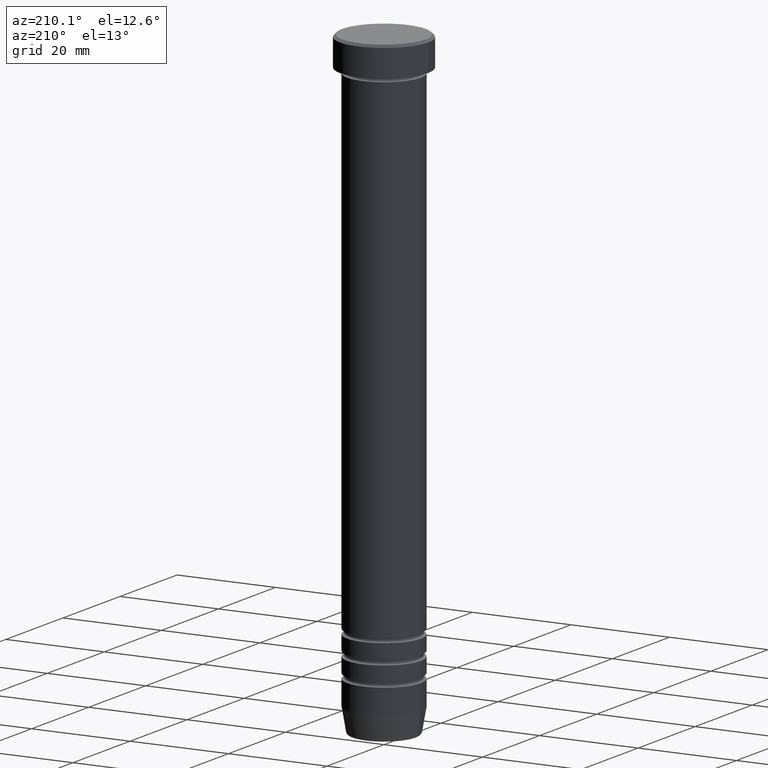
[diagram: clean part render]
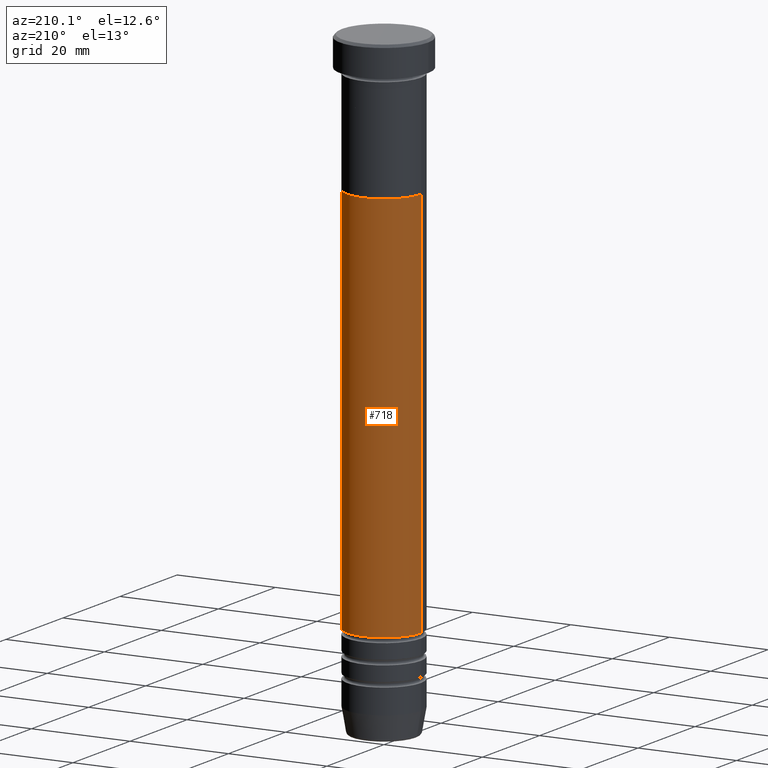
[diagram: same view with one face highlighted and labeled with its STEP entity id]
A machine part, auxiliary view. The second image highlights one B-rep face of the part: STEP entity #718.
In plain terms, the highlighted cylindrical surface (partial cylindrical patch) has radius 7.5 mm, axis along (-0, -0, 1).
Its self-contained STEP definition (entity closure, byte-faithful):
#2 = ORIENTED_EDGE ( 'NONE', *, *, #473, .T. ) ;
#6 = LINE ( 'NONE', #521, #517 ) ;
#11 = DIRECTION ( 'NONE',  ( -0.000000000000000000, -0.000000000000000000, 1.000000000000000000 ) ) ;
#46 = CARTESIAN_POINT ( 'NONE',  ( 0.000000000000000000, 0.000000000000000000, -107.0000000000000142 ) ) ;
#72 = CARTESIAN_POINT ( 'NONE',  ( -7.499999999999995559, 9.184850993605144000E-16, 0.000000000000000000 ) ) ;
#75 = AXIS2_PLACEMENT_3D ( 'NONE', #46, #1010, #908 ) ;
#79 = VERTEX_POINT ( 'NONE', #976 ) ;
#121 = CARTESIAN_POINT ( 'NONE',  ( 7.500000000000000000, 0.000000000000000000, -28.00000000000000000 ) ) ;
#141 = DIRECTION ( 'NONE',  ( 1.000000000000000000, 0.000000000000000000, 0.000000000000000000 ) ) ;
#193 = ORIENTED_EDGE ( 'NONE', *, *, #930, .F. ) ;
#211 = CARTESIAN_POINT ( 'NONE',  ( 0.000000000000000000, 0.000000000000000000, 0.000000000000000000 ) ) ;
#220 = AXIS2_PLACEMENT_3D ( 'NONE', #211, #912, #141 ) ;
#232 = FACE_OUTER_BOUND ( 'NONE', #342, .T. ) ;
#234 = VERTEX_POINT ( 'NONE', #829 ) ;
#271 = LINE ( 'NONE', #72, #1135 ) ;
#283 = EDGE_CURVE ( 'NONE', #647, #79, #292, .T. ) ;
#292 = CIRCLE ( 'NONE', #921, 7.500000000000000000 ) ;
#342 = EDGE_LOOP ( 'NONE', ( #2, #936, #1008, #193 ) ) ;
#473 = EDGE_CURVE ( 'NONE', #234, #860, #631, .T. ) ;
#517 = VECTOR ( 'NONE', #11, 1000.000000000000000 ) ;
#521 = CARTESIAN_POINT ( 'NONE',  ( 7.499999999999995559, 0.000000000000000000, 0.000000000000000000 ) ) ;
#631 = CIRCLE ( 'NONE', #75, 7.499999999999991118 ) ;
#647 = VERTEX_POINT ( 'NONE', #121 ) ;
#669 = DIRECTION ( 'NONE',  ( -0.000000000000000000, -0.000000000000000000, 1.000000000000000000 ) ) ;
#718 = ADVANCED_FACE ( 'NONE', ( #232 ), #994, .T. ) ;
#787 = CARTESIAN_POINT ( 'NONE',  ( 0.000000000000000000, 0.000000000000000000, -28.00000000000000000 ) ) ;
#829 = CARTESIAN_POINT ( 'NONE',  ( 7.499999999999991118, 0.000000000000000000, -107.0000000000000142 ) ) ;
#860 = VERTEX_POINT ( 'NONE', #1045 ) ;
#908 = DIRECTION ( 'NONE',  ( 1.000000000000000000, 0.000000000000000000, 0.000000000000000000 ) ) ;
#912 = DIRECTION ( 'NONE',  ( -0.000000000000000000, -0.000000000000000000, 1.000000000000000000 ) ) ;
#921 = AXIS2_PLACEMENT_3D ( 'NONE', #787, #669, #1023 ) ;
#930 = EDGE_CURVE ( 'NONE', #234, #647, #6, .T. ) ;
#936 = ORIENTED_EDGE ( 'NONE', *, *, #992, .T. ) ;
#976 = CARTESIAN_POINT ( 'NONE',  ( -7.500000000000000888, 9.184850993605149917E-16, -28.00000000000000000 ) ) ;
#992 = EDGE_CURVE ( 'NONE', #860, #79, #271, .T. ) ;
#994 = CYLINDRICAL_SURFACE ( 'NONE', #220, 7.499999999999995559 ) ;
#1008 = ORIENTED_EDGE ( 'NONE', *, *, #283, .F. ) ;
#1010 = DIRECTION ( 'NONE',  ( -0.000000000000000000, -0.000000000000000000, 1.000000000000000000 ) ) ;
#1023 = DIRECTION ( 'NONE',  ( 1.000000000000000000, 0.000000000000000000, 0.000000000000000000 ) ) ;
#1045 = CARTESIAN_POINT ( 'NONE',  ( -7.499999999999991118, 9.184850993605142028E-16, -107.0000000000000142 ) ) ;
#1134 = DIRECTION ( 'NONE',  ( -0.000000000000000000, -0.000000000000000000, 1.000000000000000000 ) ) ;
#1135 = VECTOR ( 'NONE', #1134, 1000.000000000000000 ) ;